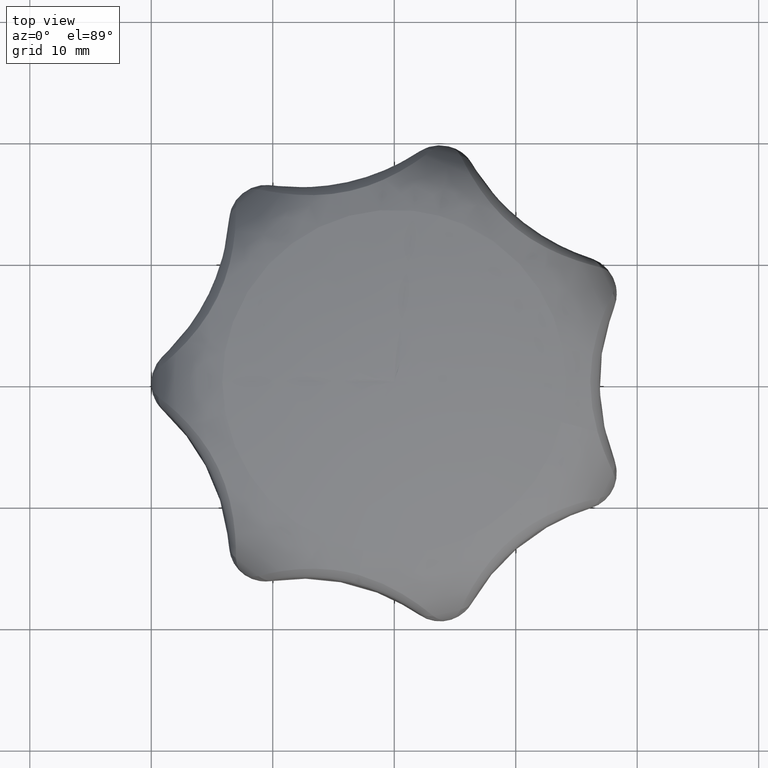
[diagram: clean part render]
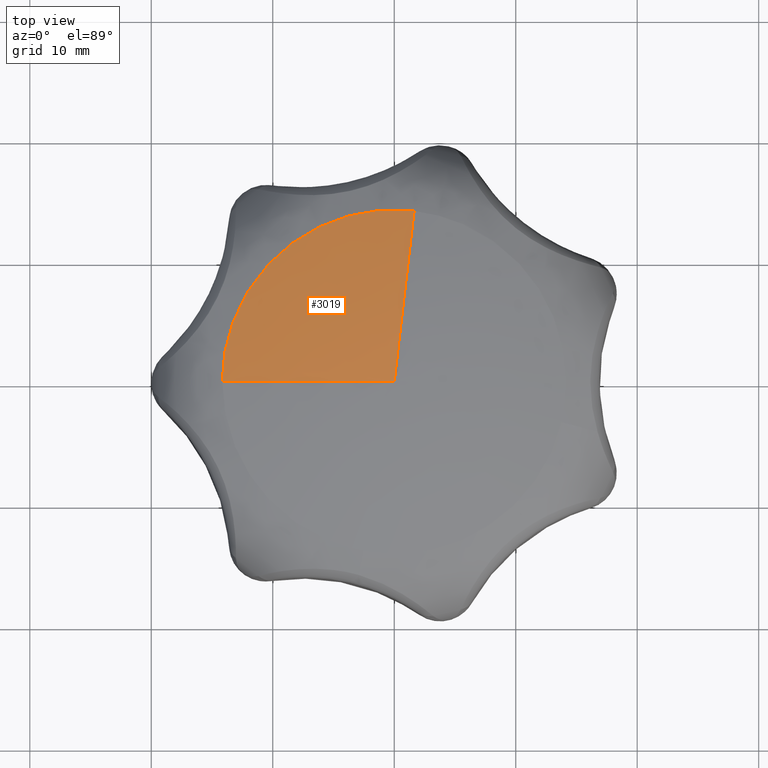
[diagram: same view with one face highlighted and labeled with its STEP entity id]
A machine part, top view. The second image highlights one B-rep face of the part: STEP entity #3019.
In plain terms, the highlighted face is a freeform B-spline surface patch.
Its self-contained STEP definition (entity closure, byte-faithful):
#2298=CARTESIAN_POINT('',(-14.156655298356300,0.0,23.484275474744681));
#2299=VERTEX_POINT('',#2298);
#2313=CARTESIAN_POINT('',(1.634552423069075,14.061897552732781,23.484292791448969));
#2314=VERTEX_POINT('',#2313);
#2315=CARTESIAN_POINT('',(1.634552423069075,14.061897552732784,23.484292791448965));
#2316=CARTESIAN_POINT('',(0.820014128056921,14.156581436390683,23.484292344836099));
#2317=CARTESIAN_POINT('',(-0.000008560112460,14.156583749900550,23.484291843301921));
#2318=CARTESIAN_POINT('',(-14.156661194622668,14.156623689716854,23.484283184949774));
#2319=CARTESIAN_POINT('',(-14.156655298356300,0.0,23.484275474744681));
#2327=(BOUNDED_CURVE()B_SPLINE_CURVE(2,(#2315,#2316,#2317,#2318,#2319),.UNSPECIFIED.,.F.,.U.)B_SPLINE_CURVE_WITH_KNOTS((3,2,3),(0.730000313272835,0.750000000000000,1.0),.UNSPECIFIED.)CURVE()GEOMETRIC_REPRESENTATION_ITEM()RATIONAL_B_SPLINE_CURVE((0.956886734788466,0.976568909516880,1.0,0.707106781186548,1.0))REPRESENTATION_ITEM(''));
#2328=EDGE_CURVE('',#2314,#2299,#2327,.T.);
#2957=CARTESIAN_POINT('',(-4.632923E-015,7.425573E-015,25.000000340533870));
#2958=VERTEX_POINT('',#2957);
#2959=CARTESIAN_POINT('',(1.634552423069074,14.061897552732782,23.484292791448969));
#2960=CARTESIAN_POINT('',(0.827478100504168,7.118713230433150,25.067378507999649));
#2961=CARTESIAN_POINT('',(-4.632923E-015,7.425573E-015,25.000000340533859));
#2969=(BOUNDED_CURVE()B_SPLINE_CURVE(2,(#2959,#2960,#2961),.UNSPECIFIED.,.F.,.U.)B_SPLINE_CURVE_WITH_KNOTS((3,3),(0.925051015502926,1.0),.UNSPECIFIED.)CURVE()GEOMETRIC_REPRESENTATION_ITEM()RATIONAL_B_SPLINE_CURVE((0.911674444461200,0.927723055532847,0.956886118190660))REPRESENTATION_ITEM(''));
#2970=EDGE_CURVE('',#2314,#2958,#2969,.T.);
#2972=CARTESIAN_POINT('',(-14.156655298356302,0.0,23.484275474744681));
#2973=CARTESIAN_POINT('',(-7.166684555386967,0.0,25.067378881551750));
#2974=CARTESIAN_POINT('',(-1.539567E-014,0.0,25.000000340533870));
#2982=(BOUNDED_CURVE()B_SPLINE_CURVE(2,(#2972,#2973,#2974),.UNSPECIFIED.,.F.,.U.)B_SPLINE_CURVE_WITH_KNOTS((3,3),(0.925050612676142,1.0),.UNSPECIFIED.)CURVE()GEOMETRIC_REPRESENTATION_ITEM()RATIONAL_B_SPLINE_CURVE((0.952751068928809,0.969522789759896,1.0))REPRESENTATION_ITEM(''));
#2983=EDGE_CURVE('',#2299,#2958,#2982,.T.);
#2991=CARTESIAN_POINT('',(-14.866890116847506,0.0,23.318985372251969));
#2992=CARTESIAN_POINT('',(-7.536493816924422,0.0,25.070855692663606));
#2993=CARTESIAN_POINT('',(-1.539567E-014,0.0,25.000000340533870));
#2994=CARTESIAN_POINT('',(-14.866890116847490,14.866890116847500,23.318985372251955));
#2995=CARTESIAN_POINT('',(-7.536493816924410,7.536493816924422,25.070855692663606));
#2996=CARTESIAN_POINT('',(0.0,1.539567E-014,25.000000340533862));
#2997=CARTESIAN_POINT('',(0.0,14.866890116847506,23.318985372251969));
#2998=CARTESIAN_POINT('',(0.0,7.536493816924422,25.070855692663606));
#2999=CARTESIAN_POINT('',(0.0,1.539567E-014,25.000000340533870));
#3000=CARTESIAN_POINT('',(0.861176936125426,14.866890116847502,23.318985372251955));
#3001=CARTESIAN_POINT('',(0.436557652836371,7.536493816924422,25.070855692663606));
#3002=CARTESIAN_POINT('',(8.918070E-016,1.450386E-014,25.000000340533870));
#3003=CARTESIAN_POINT('',(1.716594009832089,14.767454985603527,23.318985372251959));
#3004=CARTESIAN_POINT('',(0.870195450399436,7.486087023982832,25.070855692663621));
#3005=CARTESIAN_POINT('',(1.777649E-015,1.361802E-014,25.000000340533862));
#3013=(BOUNDED_SURFACE()B_SPLINE_SURFACE(2,2,((#2991,#2994,#2997,#3000,#3003),(#2992,#2995,#2998,#3001,#3004),(#2993,#2996,#2999,#3002,#3005)),.UNSPECIFIED.,.F.,.F.,.U.)B_SPLINE_SURFACE_WITH_KNOTS((3,3),(3,2,3),(0.921306894546747,1.0),(0.0,0.250000000000000,0.270000000000000),.UNSPECIFIED.)GEOMETRIC_REPRESENTATION_ITEM()RATIONAL_B_SPLINE_SURFACE(((0.951109770865406,0.672536168631712,0.951109770865406,0.928823882686711,0.910103736616606),(0.968000454640381,0.684479685667875,0.968000454640381,0.945318793122581,0.926266197447628),(1.0,0.707106781186548,1.0,0.976568542494924,0.956886118190660)))REPRESENTATION_ITEM('')SURFACE());
#3014=ORIENTED_EDGE('',*,*,#2328,.T.);
#3015=ORIENTED_EDGE('',*,*,#2983,.T.);
#3016=ORIENTED_EDGE('',*,*,#2970,.F.);
#3017=EDGE_LOOP('',(#3014,#3015,#3016));
#3018=FACE_OUTER_BOUND('',#3017,.T.);
#3019=ADVANCED_FACE('',(#3018),#3013,.T.);